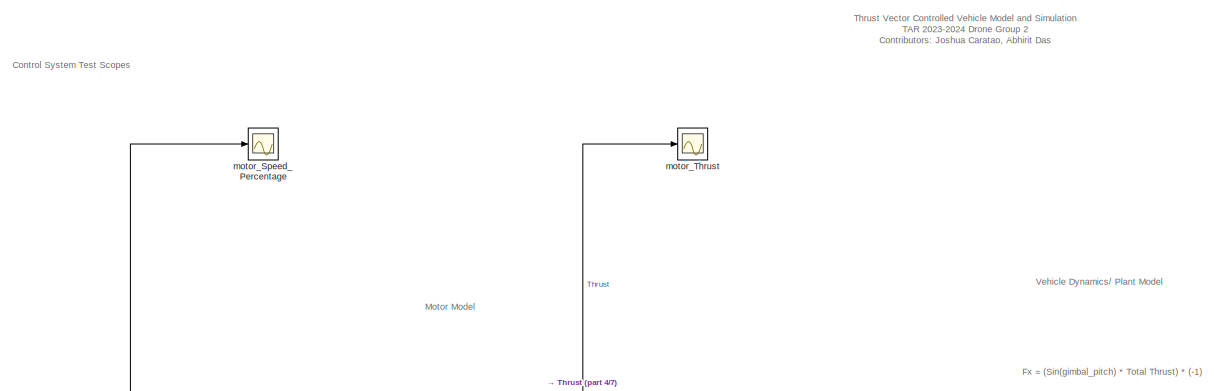
[diagram: root canvas - part 1/7, top center region]
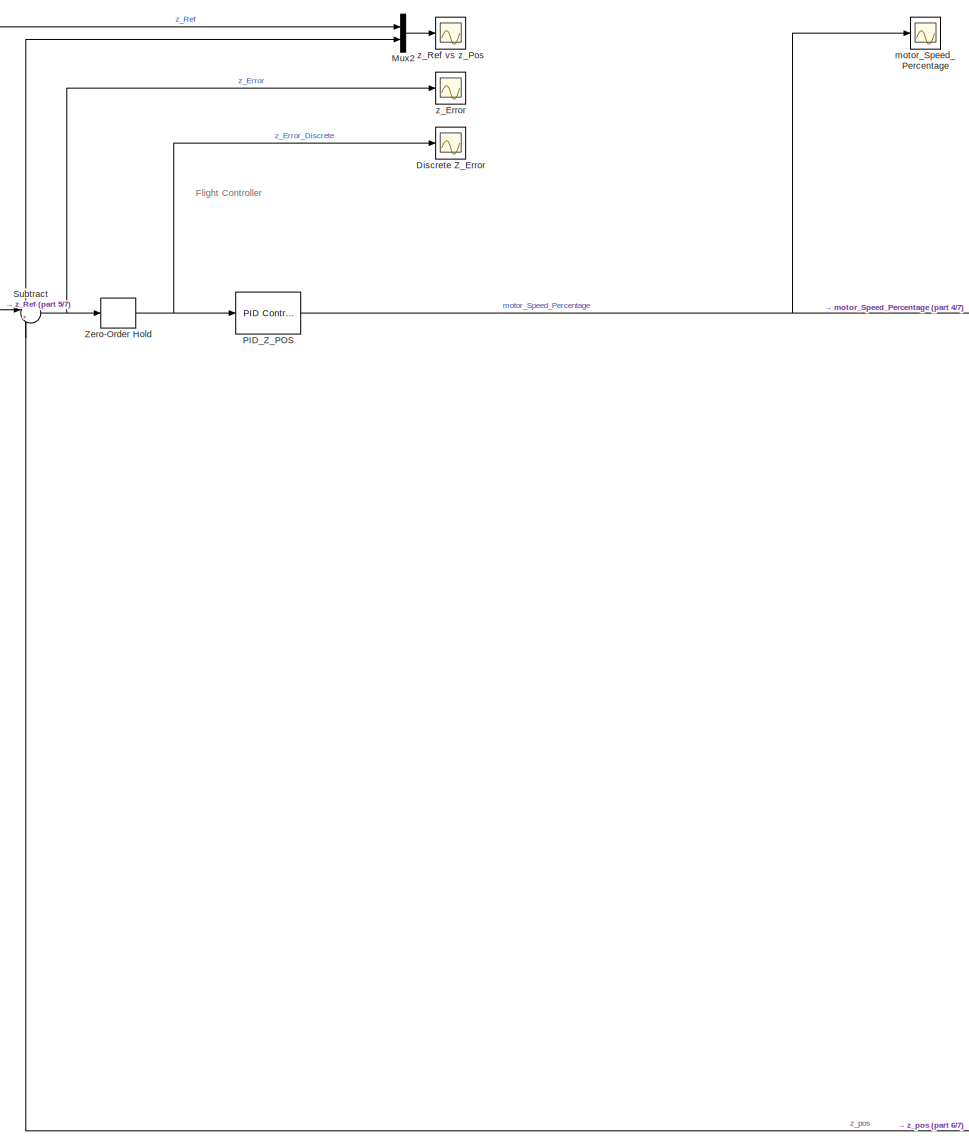
[diagram: root canvas - part 2/7, left side, full height]
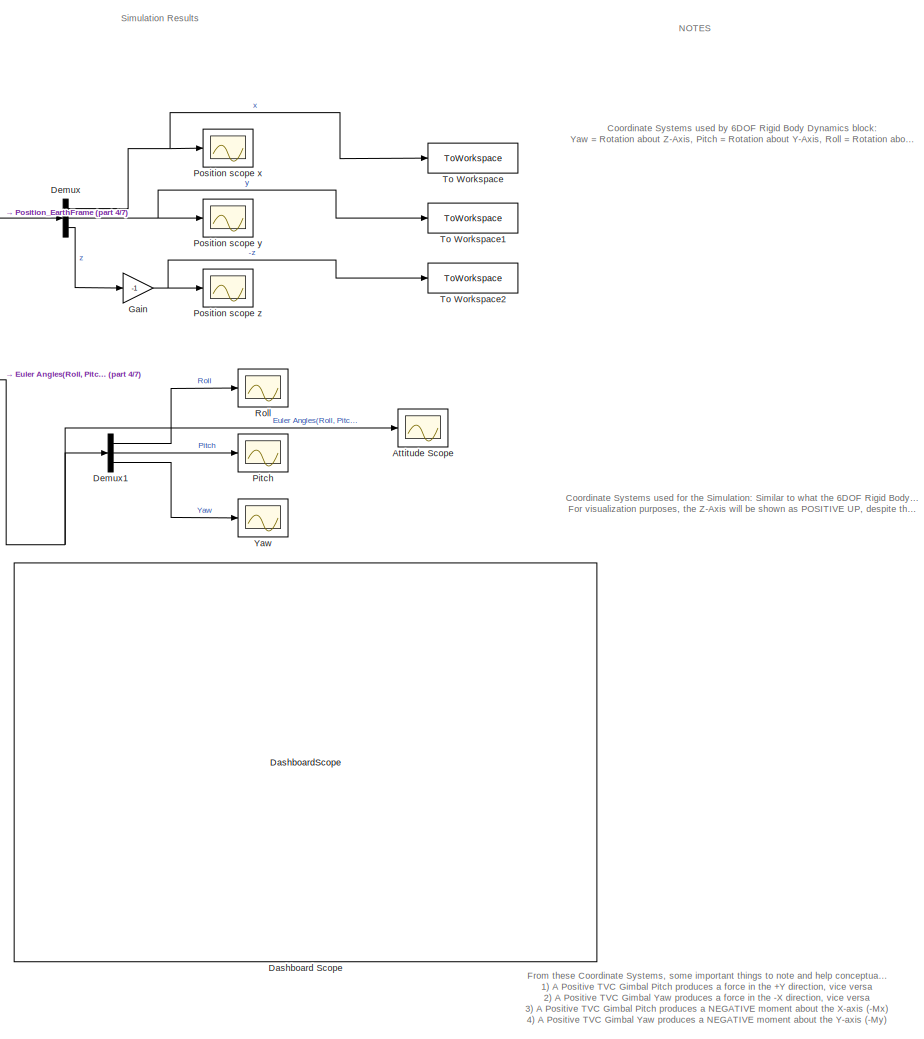
[diagram: root canvas - part 3/7, middle right region]
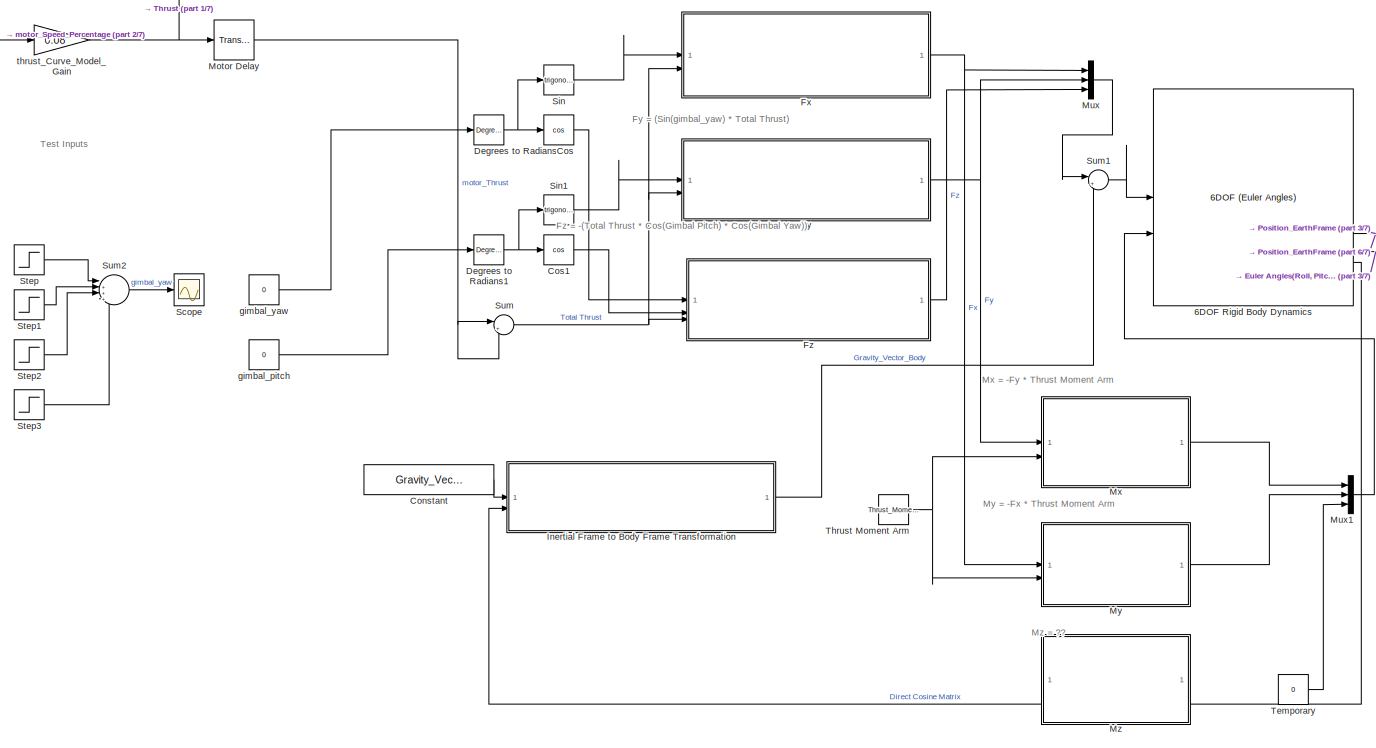
[diagram: root canvas - part 4/7, central region]
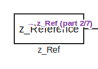
[diagram: root canvas - part 5/7, top left region]
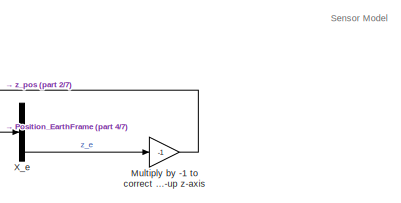
[diagram: root canvas - part 6/7, bottom center region]
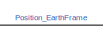
[diagram: root canvas - part 7/7, bottom center region]
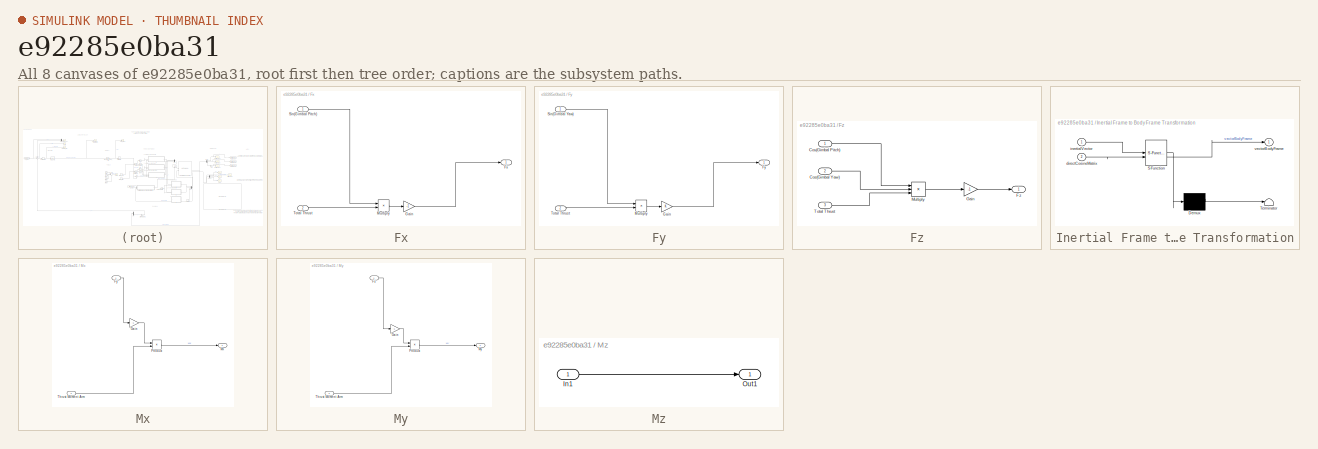
[diagram: thumbnail index - all 8 canvases of the model, root first then tree order]
MODEL slx_e92285e0ba31
KIND model
CONFIG AbsTol = auto
CONFIG EnableMultiTasking = off
CONFIG FixedStep = auto
CONFIG MaxStep = auto
CONFIG MinStep = auto
CONFIG RelTol = 1e-3
CONFIG SampleTimeConstraint = Unconstrained
CONFIG SolverName = VariableStepAuto
CONFIG StartTime = 0.0
CONFIG StopTime = 20
BLOCK [Reference] 6DOF Rigid Body Dynamics   REF=shared6dof/6DOF (Euler Angles)
  LibrarySourceBlock = aerolib6dof2/6DOF (Euler Angles)
  SourceBlock = shared6dof/6DOF (Euler Angles)
  SourceType = 6DOF EoM (Body Axis)
BLOCK [Scope] Attitude Scope
  Floating = off
  NumInputPorts = 1
  ScopeSpecificationString = Simulink.scopes.TimeScopeBlockCfg('CurrentConfiguration', extmgr.ConfigurationSet(extmgr.Configuration('Core','General UI',true),extmgr.Configuration('Core','Source UI',true),extmgr.Configuration('Sources','WiredSimulink',true,'DataLoggingVariableName','ScopeData4'),extmgr.Configuration('Visuals','Time Domain',true,'SerializedDisplays',{struct('MinYLimReal','-1.00000','MaxYLimReal','1.00000','YLab...<+1548ch>
BLOCK [Constant] Constant
  Value = Gravity_Vector_Inertial
BLOCK [Trigonometry] Cos
  Operator = cos
BLOCK [Trigonometry] Cos1
  Operator = cos
BLOCK [DashboardScope] Dashboard Scope
BLOCK [Reference] Degrees to Radians  REF=simulink_extras/Transformations/Degrees to
Radians
  SourceBlock = simulink_extras/Transformations/Degrees to\nRadians
  SourceType = DegreesToRadians
BLOCK [Reference] Degrees to Radians1  REF=simulink_extras/Transformations/Degrees to
Radians
  SourceBlock = simulink_extras/Transformations/Degrees to\nRadians
  SourceType = DegreesToRadians
BLOCK [Demux] Demux
  Outputs = 3
BLOCK [Demux] Demux1
  Outputs = 3
BLOCK [Scope] Discrete Z_Error
  Floating = off
  NumInputPorts = 1
  ScopeSpecificationString = Simulink.scopes.TimeScopeBlockCfg('CurrentConfiguration', extmgr.ConfigurationSet(extmgr.Configuration('Core','General UI',true),extmgr.Configuration('Core','Source UI',true),extmgr.Configuration('Sources','WiredSimulink',true,'DataLoggingVariableName','ScopeData5'),extmgr.Configuration('Visuals','Time Domain',true,'SerializedDisplays',{struct('MinYLimReal','-11.97399','MaxYLimReal','34.66523','YL...<+1470ch>
BLOCK [SubSystem] Fx
BLOCK [Outport] Fx/Fx
BLOCK [Gain] Fx/Gain
  Gain = -1
BLOCK [Product] Fx/Multiply
BLOCK [Inport] Fx/Sin(Gimbal Pitch)
BLOCK [Inport] Fx/Total Thrust
  Port = 2
BLOCK [SubSystem] Fy
BLOCK [Outport] Fy/Fy
BLOCK [Gain] Fy/Gain
BLOCK [Product] Fy/Multiply
BLOCK [Inport] Fy/Sin(Gimbal Yaw)
BLOCK [Inport] Fy/Total Thrust
  Port = 2
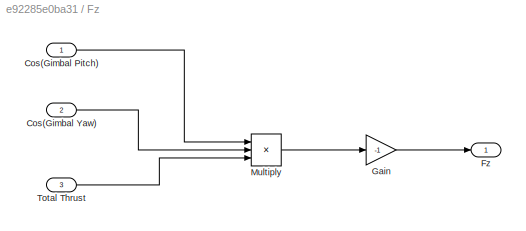
BLOCK [SubSystem] Fz
BLOCK [Inport] Fz/Cos(Gimbal Pitch)
BLOCK [Inport] Fz/Cos(Gimbal Yaw)
  Port = 2
BLOCK [Outport] Fz/Fz
BLOCK [Gain] Fz/Gain
  Gain = -1
BLOCK [Product] Fz/Multiply
  Inputs = 3
BLOCK [Inport] Fz/Total Thrust
  Port = 3
BLOCK [Gain] Gain
  Gain = -1
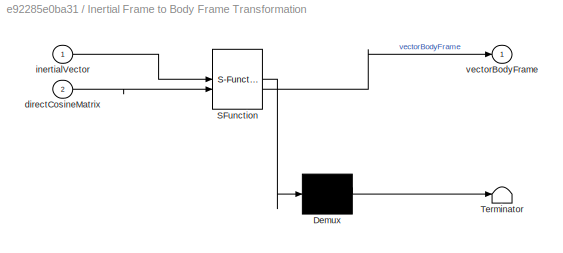
BLOCK [SubSystem] Inertial Frame to Body Frame Transformation
  ErrorFcn = Stateflow.Translate.translate
  PermitHierarchicalResolution = ExplicitOnly
  SFBlockType = MATLAB Function
  TreatAsAtomicUnit = on
BLOCK [Demux] Inertial Frame to Body Frame Transformation/ Demux 
  Outputs = 1
BLOCK [S-Function] Inertial Frame to Body Frame Transformation/ SFunction 
  EnableBusSupport = on
  FunctionName = sf_sfun
  PortCounts = [2 2]
  SFcnIsStateOwnerBlock = off
  SFunctionDeploymentMode = off
  Tag = Stateflow S-Function 2
BLOCK [Terminator] Inertial Frame to Body Frame Transformation/ Terminator 
BLOCK [Inport] Inertial Frame to Body Frame Transformation/directCosineMatrix
  Port = 2
BLOCK [Inport] Inertial Frame to Body Frame Transformation/inertialVector
BLOCK [Outport] Inertial Frame to Body Frame Transformation/vectorBodyFrame
BLOCK [TransportDelay] Motor Delay
  DelayTime = 0.01
BLOCK [Gain] Multiply by -1 to correct for a positive-up z-axis
  Gain = -1
BLOCK [Mux] Mux
  DisplayOption = bar
  Inputs = 3
BLOCK [Mux] Mux1
  DisplayOption = bar
  Inputs = 3
BLOCK [Mux] Mux2
  DisplayOption = bar
  Inputs = 2
BLOCK [SubSystem] Mx
BLOCK [Inport] Mx/Fy
BLOCK [Gain] Mx/Gain
  Gain = -1
BLOCK [Outport] Mx/Mx
BLOCK [Product] Mx/Product
BLOCK [Inport] Mx/Thrust Moment Arm
  Port = 2
BLOCK [SubSystem] My
BLOCK [Inport] My/Fx
BLOCK [Gain] My/Gain
  Gain = -1
BLOCK [Outport] My/My
BLOCK [Product] My/Product
BLOCK [Inport] My/Thrust Moment Arm
  Port = 2
BLOCK [SubSystem] Mz
BLOCK [Inport] Mz/In1
BLOCK [Outport] Mz/Out1
BLOCK [Reference] PID_Z_POS  REF=slpidlib/PID Controller
  LibrarySourceBlock = simulink/Discrete/Discrete PID Controller
  SourceBlock = slpidlib/PID Controller
  SourceType = PID 1dof
BLOCK [Scope] Pitch
  Floating = off
  NumInputPorts = 1
  ScopeSpecificationString = Simulink.scopes.TimeScopeBlockCfg('CurrentConfiguration', extmgr.ConfigurationSet(extmgr.Configuration('Core','General UI',true),extmgr.Configuration('Core','Source UI',true),extmgr.Configuration('Sources','WiredSimulink',true,'DataLoggingVariableName','ScopeData1'),extmgr.Configuration('Visuals','Time Domain',true,'SerializedDisplays',{struct('MinYLimReal','-1.00000','MaxYLimReal','1.00000','YLab...<+1482ch>
BLOCK [Scope] Position scope x
  Floating = off
  NumInputPorts = 1
  ScopeSpecificationString = Simulink.scopes.TimeScopeBlockCfg('CurrentConfiguration', extmgr.ConfigurationSet(extmgr.Configuration('Core','General UI',true),extmgr.Configuration('Core','Source UI',true),extmgr.Configuration('Sources','WiredSimulink',true),extmgr.Configuration('Visuals','Time Domain',true,'SerializedDisplays',{struct('MinYLimReal','-179.4765','MaxYLimReal','19.94183','YLabelReal','','MinYLimMag',' 0.00000','M...<+1448ch>
BLOCK [Scope] Position scope y
  Floating = off
  NumInputPorts = 1
  ScopeSpecificationString = Simulink.scopes.TimeScopeBlockCfg('CurrentConfiguration', extmgr.ConfigurationSet(extmgr.Configuration('Core','General UI',true),extmgr.Configuration('Core','Source UI',true),extmgr.Configuration('Sources','WiredSimulink',true,'DataLoggingVariableName','ScopeData2'),extmgr.Configuration('Visuals','Time Domain',true,'SerializedDisplays',{struct('MinYLimReal','-1.00000','MaxYLimReal','1.00000','YLab...<+1449ch>
BLOCK [Scope] Position scope z
  Floating = off
  NumInputPorts = 1
  ScopeSpecificationString = Simulink.scopes.TimeScopeBlockCfg('CurrentConfiguration', extmgr.ConfigurationSet(extmgr.Configuration('Core','General UI',true),extmgr.Configuration('Core','Source UI',true),extmgr.Configuration('Sources','WiredSimulink',true,'DataLoggingVariableName','ScopeData3'),extmgr.Configuration('Visuals','Time Domain',true,'SerializedDisplays',{struct('MinYLimReal','-551.8125','MaxYLimReal','61.3125','YLa...<+1528ch>
BLOCK [Scope] Roll
  Floating = off
  NumInputPorts = 1
  ScopeSpecificationString = Simulink.scopes.TimeScopeBlockCfg('CurrentConfiguration', extmgr.ConfigurationSet(extmgr.Configuration('Core','General UI',true),extmgr.Configuration('Core','Source UI',true),extmgr.Configuration('Sources','WiredSimulink',true,'DataLoggingVariableName','ScopeData1'),extmgr.Configuration('Visuals','Time Domain',true,'SerializedDisplays',{struct('MinYLimReal','-1.00000','MaxYLimReal','1.00000','YLab...<+1452ch>
BLOCK [Scope] Scope
  Floating = off
  NumInputPorts = 1
  ScopeSpecificationString = Simulink.scopes.TimeScopeBlockCfg('CurrentConfiguration', extmgr.ConfigurationSet(extmgr.Configuration('Core','General UI',true),extmgr.Configuration('Core','Source UI',true),extmgr.Configuration('Sources','WiredSimulink',true,'DataLoggingVariableName','ScopeData1'),extmgr.Configuration('Visuals','Time Domain',true,'SerializedDisplays',{struct('MinYLimReal','-1.8125','MaxYLimReal','1.3125','YLabel...<+1452ch>
BLOCK [Trigonometry] Sin
BLOCK [Trigonometry] Sin1
BLOCK [Step] Step
  SampleTime = 0
BLOCK [Step] Step1
  After = -1
  SampleTime = 0
  Time = 2
BLOCK [Step] Step2
  After = -1.5
  SampleTime = 0
  Time = 3
BLOCK [Step] Step3
  After = 1.5
  SampleTime = 0
  Time = 4
BLOCK [Sum] Subtract
  Inputs = |+-
BLOCK [Sum] Sum
  Inputs = |++
BLOCK [Sum] Sum1
  Inputs = |++
BLOCK [Sum] Sum2
  Inputs = |++++
BLOCK [Constant] Temporary
  Value = 0
BLOCK [Constant] Thrust Moment Arm 
  Value = Thrust_Moment_Arm
BLOCK [ToWorkspace] To Workspace
  FixptAsFi = on
  MaxDataPoints = inf
  SampleTime = -1
  VariableName = xData
BLOCK [ToWorkspace] To Workspace1
  FixptAsFi = on
  MaxDataPoints = inf
  SampleTime = -1
  VariableName = yData
BLOCK [ToWorkspace] To Workspace2
  FixptAsFi = on
  MaxDataPoints = inf
  SampleTime = -1
  VariableName = zData
BLOCK [Demux] X_e
  Outputs = 3
BLOCK [Scope] Yaw
  Floating = off
  NumInputPorts = 1
  ScopeSpecificationString = Simulink.scopes.TimeScopeBlockCfg('CurrentConfiguration', extmgr.ConfigurationSet(extmgr.Configuration('Core','General UI',true),extmgr.Configuration('Core','Source UI',true),extmgr.Configuration('Sources','WiredSimulink',true,'DataLoggingVariableName','ScopeData2'),extmgr.Configuration('Visuals','Time Domain',true,'SerializedDisplays',{struct('MinYLimReal','-1.00000','MaxYLimReal','1.00000','YLab...<+1451ch>
BLOCK [ZeroOrderHold] Zero-Order Hold
  SampleTime = 0.01
BLOCK [Constant] gimbal_pitch
  Value = 0
BLOCK [Constant] gimbal_yaw
  Value = 0
BLOCK [Scope] motor_Speed_Percentage
  Floating = off
  NumInputPorts = 1
  ScopeSpecificationString = Simulink.scopes.TimeScopeBlockCfg('CurrentConfiguration', extmgr.ConfigurationSet(extmgr.Configuration('Core','General UI',true),extmgr.Configuration('Core','Source UI',true),extmgr.Configuration('Sources','WiredSimulink',true,'DataLoggingVariableName','ScopeData1'),extmgr.Configuration('Visuals','Time Domain',true,'SerializedDisplays',{struct('MinYLimReal','26.56872','MaxYLimReal','108.15903','YL...<+1509ch>
BLOCK [Scope] motor_Thrust
  Floating = off
  NumInputPorts = 1
  ScopeSpecificationString = Simulink.scopes.TimeScopeBlockCfg('CurrentConfiguration', extmgr.ConfigurationSet(extmgr.Configuration('Core','General UI',true),extmgr.Configuration('Core','Source UI',true),extmgr.Configuration('Sources','WiredSimulink',true,'DataLoggingVariableName','ScopeData1'),extmgr.Configuration('Visuals','Time Domain',true,'SerializedDisplays',{struct('MinYLimReal','2.1255','MaxYLimReal','8.65272','YLabel...<+1476ch>
BLOCK [Gain] thrust_Curve_Model_Gain
  Gain = 0.08
BLOCK [Scope] z_Error
  Floating = off
  NumInputPorts = 1
  ScopeSpecificationString = Simulink.scopes.TimeScopeBlockCfg('CurrentConfiguration', extmgr.ConfigurationSet(extmgr.Configuration('Core','General UI',true),extmgr.Configuration('Core','Source UI',true),extmgr.Configuration('Sources','WiredSimulink',true,'DataLoggingVariableName','ScopeData4'),extmgr.Configuration('Visuals','Time Domain',true,'SerializedDisplays',{struct('MinYLimReal','-11.97399','MaxYLimReal','34.66523','YL...<+1461ch>
BLOCK [Constant] z_Ref
  Value = z_Reference
BLOCK [Scope] z_Ref vs z_Pos
  Floating = off
  NumInputPorts = 1
  ScopeSpecificationString = Simulink.scopes.TimeScopeBlockCfg('CurrentConfiguration', extmgr.ConfigurationSet(extmgr.Configuration('Core','General UI',true),extmgr.Configuration('Core','Source UI',true),extmgr.Configuration('Sources','WiredSimulink',true,'DataLoggingVariableName','ScopeData2'),extmgr.Configuration('Visuals','Time Domain',true,'SerializedDisplays',{struct('MinYLimReal','-4.66523','MaxYLimReal','41.97399','YLa...<+1778ch>
ANNOTATION (root): Thrust Vector Controlled Vehicle Model and Simulation TAR 2023-2024 Drone Group 2 Contributors: Joshua Caratao, Abhirit Das
ANNOTATION (root): Coordinate Systems used by 6DOF Rigid Body Dynamics block: Yaw = Rotation about Z-Axis, Pitch = Rotation about Y-Axis, Roll = Rotation about X-Axis (All about the intertial frame)
ANNOTATION (root): Coordinate Systems used for the Simulation: Similar to what the 6DOF Rigid Body Dynamics block uses for its calculations. Note, the Roll, Pitch, and Yaw shown here are used for the visualization purposes and are not what is used in the EOM calculations (Except for the Gimbal yaw and pitch). For visualization purposes, the Z-Axis will be shown as POSITIVE UP , despite the frames shown here.
ANNOTATION (root): From these Coordinate Systems, some important things to note and help conceptualize how the dynamics work: 1) A Positive TVC Gimbal Pitch produces a force in the +Y direction, vice versa 2) A Positive TVC Gimbal Yaw produces a force in the -X direction, vice versa 3) A Positive TVC Gimbal Pitch produces a NEGATIVE moment about the X-axis ( -Mx ) 4) A Positive TVC Gimbal Yaw produces a NEGATIVE mom...<+28ch>
ANNOTATION (root): Control System Test Scopes
ANNOTATION (root): Flight Controller
ANNOTATION (root): Motor Model
ANNOTATION (root): NOTES
ANNOTATION (root): Sensor M odel
ANNOTATION (root): Simulation Results
ANNOTATION (root): Test Inputs
ANNOTATION (root): Vehicle Dynamics/ Plant Model
ANNOTATION (root): Fx = (Sin(gimbal_pitch) * Total Thrust) * (-1)
ANNOTATION (root): Fy = (Sin(gimbal_yaw) * Total Thrust)
ANNOTATION (root): Fz = -(Total Thrust * Cos(Gimbal Pitch) * Cos(Gimbal Yaw))
ANNOTATION (root): Mx = -Fy * Thrust Moment Arm
ANNOTATION (root): My = -Fx * Thrust Moment Arm
ANNOTATION (root): Mz = ??
NET 6DOF Rigid Body Dynamics :2 -> Demux:1, X_e:1
NET 6DOF Rigid Body Dynamics :3 -> Attitude Scope:1, Demux1:1
LINE 6DOF Rigid Body Dynamics :4 -> Inertial Frame to Body Frame Transformation:2
LINE Constant:1 -> Inertial Frame to Body Frame Transformation:1
LINE Cos1:1 -> Fz:2
LINE Cos:1 -> Fz:1
NET Degrees to Radians1:1 -> Cos1:1, Sin1:1
NET Degrees to Radians:1 -> Cos:1, Sin:1
LINE Demux1:1 -> Roll:1
LINE Demux1:2 -> Pitch:1
LINE Demux1:3 -> Yaw:1
NET Demux:1 -> Position scope x:1, To Workspace:1
NET Demux:2 -> Position scope y:1, To Workspace1:1
LINE Demux:3 -> Gain:1
LINE Fx/Gain:1 -> Fx/Fx:1
LINE Fx/Multiply:1 -> Fx/Gain:1
LINE Fx/Sin(Gimbal Pitch):1 -> Fx/Multiply:1
LINE Fx/Total Thrust:1 -> Fx/Multiply:2
NET Fx:1 -> Mux:1, My:1
LINE Fy/Gain:1 -> Fy/Fy:1
LINE Fy/Multiply:1 -> Fy/Gain:1
LINE Fy/Sin(Gimbal Yaw):1 -> Fy/Multiply:1
LINE Fy/Total Thrust:1 -> Fy/Multiply:2
NET Fy:1 -> Mux:2, Mx:1
LINE Fz/Cos(Gimbal Pitch):1 -> Fz/Multiply:1
LINE Fz/Cos(Gimbal Yaw):1 -> Fz/Multiply:2
LINE Fz/Gain:1 -> Fz/Fz:1
LINE Fz/Multiply:1 -> Fz/Gain:1
LINE Fz/Total Thrust:1 -> Fz/Multiply:3
LINE Fz:1 -> Mux:3
NET Gain:1 -> Position scope z:1, To Workspace2:1
LINE Inertial Frame to Body Frame Transformation:1 -> Sum1:2
NET Motor Delay:1 -> Sum:1, Sum:2
NET Multiply by -1 to correct for a positive-up z-axis:1 -> Mux2:2, Subtract:2
LINE Mux1:1 -> 6DOF Rigid Body Dynamics :2
LINE Mux2:1 -> z_Ref vs z_Pos:1
LINE Mux:1 -> Sum1:1
LINE Mx/Fy:1 -> Mx/Gain:1
LINE Mx/Gain:1 -> Mx/Product:1
LINE Mx/Product:1 -> Mx/Mx:1
LINE Mx/Thrust Moment Arm:1 -> Mx/Product:2
LINE Mx:1 -> Mux1:1
LINE My/Fx:1 -> My/Gain:1
LINE My/Gain:1 -> My/Product:1
LINE My/Product:1 -> My/My:1
LINE My/Thrust Moment Arm:1 -> My/Product:2
LINE My:1 -> Mux1:2
LINE Mz/In1:1 -> Mz/Out1:1
NET PID_Z_POS:1 -> motor_Speed_Percentage:1, thrust_Curve_Model_Gain:1
LINE Sin1:1 -> Fy:1
LINE Sin:1 -> Fx:1
LINE Step1:1 -> Sum2:2
LINE Step2:1 -> Sum2:3
LINE Step3:1 -> Sum2:4
LINE Step:1 -> Sum2:1
NET Subtract:1 -> Zero-Order Hold:1, z_Error:1
LINE Sum1:1 -> 6DOF Rigid Body Dynamics :1
LINE Sum2:1 -> Scope:1
NET Sum:1 -> Fx:2, Fy:2, Fz:3
LINE Temporary:1 -> Mux1:3
NET Thrust Moment Arm :1 -> Mx:2, My:2
LINE X_e:3 -> Multiply by -1 to correct for a positive-up z-axis:1
NET Zero-Order Hold:1 -> Discrete Z_Error:1, PID_Z_POS:1
LINE gimbal_pitch:1 -> Degrees to Radians1:1
LINE gimbal_yaw:1 -> Degrees to Radians:1
NET thrust_Curve_Model_Gain:1 -> Motor Delay:1, motor_Thrust:1
NET z_Ref:1 -> Mux2:1, Subtract:1
note: NET lines group one-source signal fan-out (src -> all destinations, sorted); 1:1 wires keep LINE
CHART Inertial Frame to Body Frame Transformation states=1 transitions=1
  STATE_LABEL 'eML_blk_kernel()'
  STATE_LABEL 'SCRIPT:\nfunction vectorBodyFrame = inertialToBodyFrame(inertialVector, directCosineMatrix)\n    % Function to transform a vector from the inertial frame to the body-fixed frame\n    % using Direct Cosine Matrix.\n    %\n    % Inputs:\n    %   inertial_vector - 3x1 vector in the inertial frame\n    %   directCosineMatrix - 3x3 vector that represents orientation and can be used to perform coordinate trans...<+673ch>'
CHART  states=0 transitions=0
